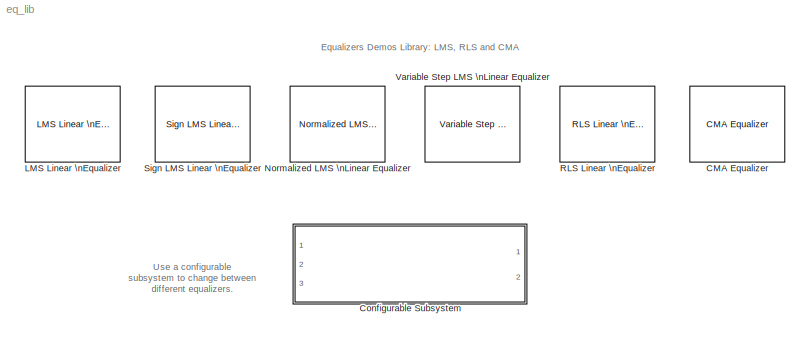
MODEL eq_lib
KIND library
BLOCK [Reference] CMA Equalizer  REF=commeq2/CMA Equalizer
  Ports = [1, 2]
  ShowPortLabels = on
  SourceBlock = commeq2/CMA Equalizer
  SourceType = CMA Equalizer
  initWeights = 0
  leakage = 1
  nSamp = 1
  nTaps = 4
  outErr = off
  outWeights = on
  sigConst = qammod([0:15],16)
  stepSize = 0.01
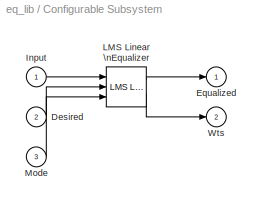
BLOCK [SubSystem] Configurable Subsystem
  BlockChoice = LMS Linear  Equalizer
  EnableExecutionContextPropagation = on
  MaskDisplay = disp(get_param(gcb,'BlockChoice'))
  MaskIconFrame = on
  MaskIconOpaque = off
  MaskIconRotate = none
  MaskIconUnits = autoscale
  MemberBlocks = CMA Equalizer,LMS Linear  Equalizer,Normalized LMS  Linear Equalizer,RLS Linear  Equalizer,Sign LMS Linear  Equalizer,Variable Step LMS  Linear Equalizer
  MinAlgLoopOccurrences = off
  Ports = [3, 2]
  TemplateBlock = self
  TreatAsAtomicUnit = off
BLOCK [Inport] Configurable Subsystem/Desired
  IconDisplay = Port number
  LatchInput = off
  Port = 2
BLOCK [Outport] Configurable Subsystem/Equalized
  BusOutputAsStruct = off
  IconDisplay = Port number
BLOCK [Inport] Configurable Subsystem/Input
  IconDisplay = Port number
  LatchInput = off
BLOCK [Reference] Configurable Subsystem/LMS Linear \nEqualizer  REF=commeq2/LMS Linear \nEqualizer
  Ports = [3, 2]
  ShowPortLabels = on
  SourceBlock = commeq2/LMS Linear \nEqualizer
  SourceType = LMS Linear Equalizer
  delay = 2
  initWeights = 0
  leakage = 1
  mode = on
  nSamp = 1
  nTaps = 4
  outErr = off
  outWeights = on
  sigConst = qammod([0:15],16)
  stepSize = 0.01
BLOCK [Inport] Configurable Subsystem/Mode
  IconDisplay = Port number
  LatchInput = off
  Port = 3
BLOCK [Outport] Configurable Subsystem/Wts
  BusOutputAsStruct = off
  IconDisplay = Port number
  Port = 2
BLOCK [Reference] LMS Linear \nEqualizer  REF=commeq2/LMS Linear \nEqualizer
  Ports = [3, 2]
  ShowPortLabels = on
  SourceBlock = commeq2/LMS Linear \nEqualizer
  SourceType = LMS Linear Equalizer
  delay = 2
  initWeights = 0
  leakage = 1
  mode = on
  nSamp = 1
  nTaps = 4
  outErr = off
  outWeights = on
  sigConst = qammod([0:15],16)
  stepSize = 0.01
BLOCK [Reference] Normalized LMS \nLinear Equalizer  REF=commeq2/Normalized LMS \nLinear Equalizer
  Ports = [3, 2]
  ShowPortLabels = on
  SourceBlock = commeq2/Normalized LMS \nLinear Equalizer
  SourceType = Normalized LMS Linear Equalizer
  bias = 1
  delay = 2
  initWeights = 0
  leakage = 1
  mode = on
  nSamp = 1
  nTaps = 4
  outErr = off
  outWeights = on
  sigConst = qammod([0:15],16)
  stepSize = 0.01
BLOCK [Reference] RLS Linear \nEqualizer  REF=commeq2/RLS Linear \nEqualizer
  Ports = [3, 2]
  ShowPortLabels = on
  SourceBlock = commeq2/RLS Linear \nEqualizer
  SourceType = RLS Linear Equalizer
  delay = 2
  initWeights = 0
  invCorr = .1*eye(4)
  lambda = .99
  mode = on
  nSamp = 1
  nTaps = 4
  outErr = off
  outWeights = on
  sigConst = qammod([0:15],16)
BLOCK [Reference] Sign LMS Linear \nEqualizer  REF=commeq2/Sign LMS Linear \nEqualizer
  Ports = [3, 2]
  ShowPortLabels = on
  SourceBlock = commeq2/Sign LMS Linear \nEqualizer
  SourceType = Sign LMS Linear Equalizer
  alg = Sign LMS
  delay = 2
  initWeights = 0
  leakage = 1
  mode = on
  nSamp = 1
  nTaps = 4
  outErr = off
  outWeights = on
  sigConst = qammod([0:15],16)
  stepSize = 0.01
BLOCK [Reference] Variable Step LMS \nLinear Equalizer  REF=commeq2/Variable Step LMS \nLinear Equalizer
  Ports = [3, 2]
  ShowPortLabels = on
  SourceBlock = commeq2/Variable Step LMS \nLinear Equalizer
  SourceType = Variable Step LMS Linear Equalizer
  delay = 2
  incMu = .01
  initMu = .01
  initWeights = 0
  leakage = 1
  maxMu = .1
  minMu = .001
  mode = on
  nSamp = 1
  nTaps = 4
  outErr = off
  outWeights = on
  sigConst = qammod([0:15],16)
ANNOTATION (root): Equalizers Demos Library: LMS, RLS and CMA
ANNOTATION (root): Use a configurable\nsubsystem to change between\ndifferent equalizers.
LINE Configurable Subsystem/Desired:1 -> Configurable Subsystem/LMS Linear \nEqualizer:2
LINE Configurable Subsystem/Input:1 -> Configurable Subsystem/LMS Linear \nEqualizer:1
LINE Configurable Subsystem/LMS Linear \nEqualizer:1 -> Configurable Subsystem/Equalized:1
LINE Configurable Subsystem/LMS Linear \nEqualizer:2 -> Configurable Subsystem/Wts:1
LINE Configurable Subsystem/Mode:1 -> Configurable Subsystem/LMS Linear \nEqualizer:3
